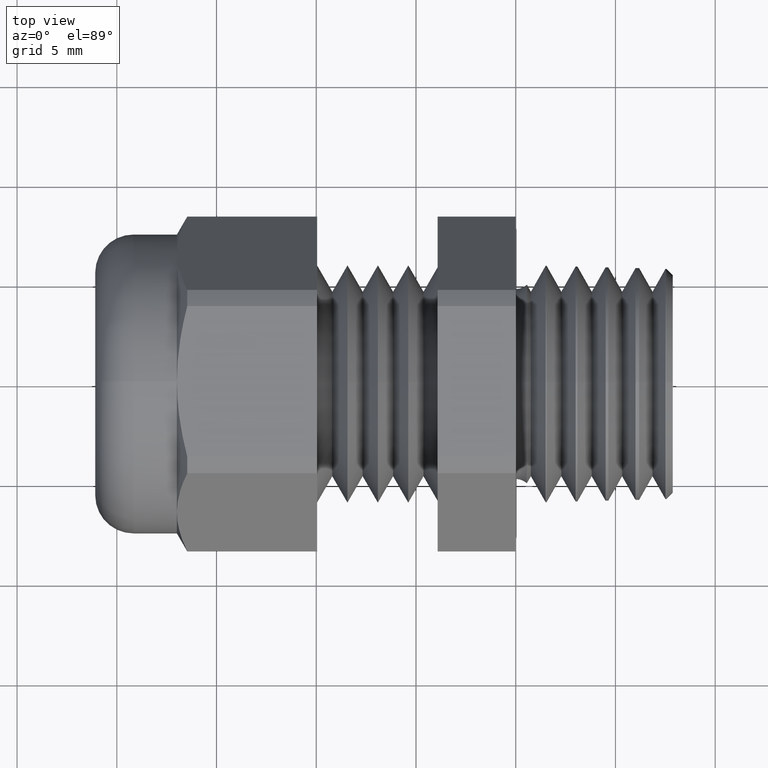
[diagram: clean part render]
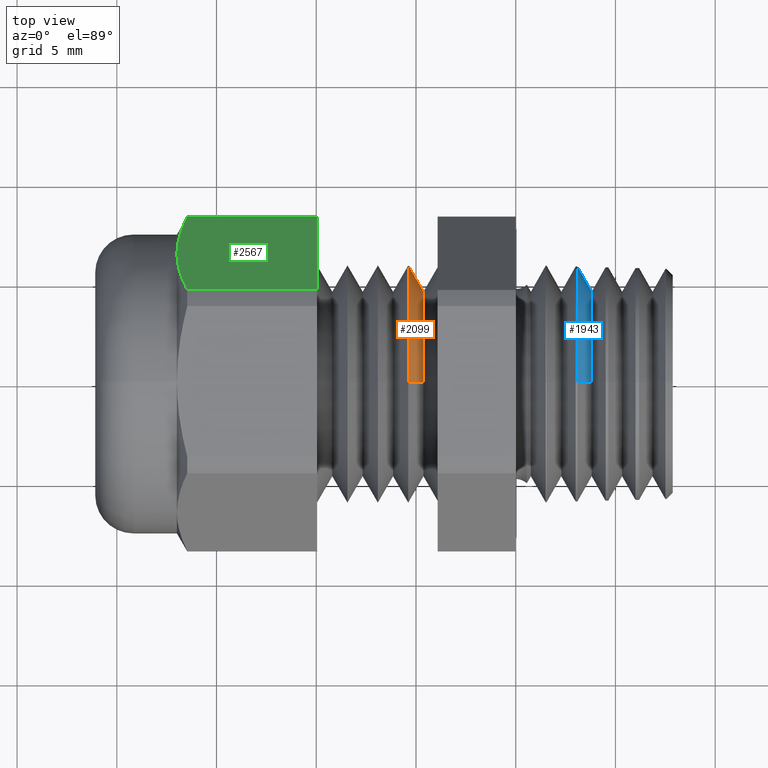
[diagram: same view with three faces highlighted in distinct colors, each labeled with its STEP entity id]
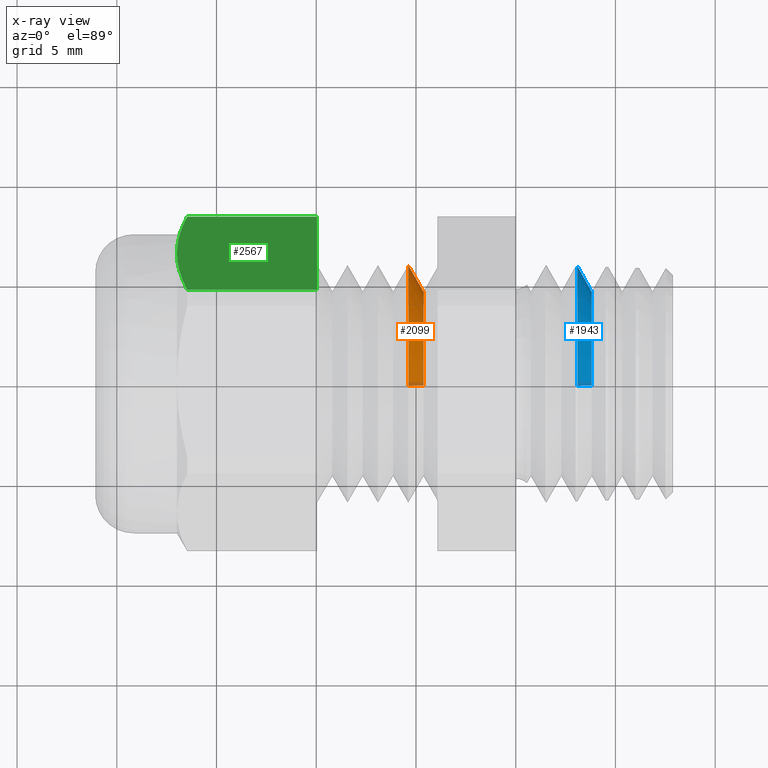
[diagram: x-ray of the same camera — body ghosted, the three highlighted faces saturated]
A machine part, top view with three faces highlighted in distinct colors.
The next image is the same camera in x-ray (body ghosted, the three faces saturated) — at least one of them is partly hidden behind the body in this view.
Their STEP definitions:

[orange] entity #2099 — the highlighted conical surface has half-angle 60 deg.
#34 = DIRECTION ( 'NONE',  ( 0.0000000000000000000, 0.0000000000000000000, -1.000000000000000000 ) ) ;
#35 = DIRECTION ( 'NONE',  ( 1.000000000000000000, 0.0000000000000000000, 0.0000000000000000000 ) ) ;
#36 = CARTESIAN_POINT ( 'NONE',  ( -0.2120833333333335400, 0.0000000000000000000, 0.0000000000000000000 ) ) ;
#37 = AXIS2_PLACEMENT_3D ( 'NONE', #36, #35, #34 ) ;
#38 = CIRCLE ( 'NONE', #37, 0.2349999999999998200 ) ;
#43 = CARTESIAN_POINT ( 'NONE',  ( -0.2120833333333335400, 2.877919977996278600E-017, 0.2349999999999998200 ) ) ;
#44 = DIRECTION ( 'NONE',  ( -0.4999999999999935100, 0.0000000000000000000, 0.8660254037844422600 ) ) ;
#45 = VECTOR ( 'NONE', #44, 39.37007874015748900 ) ;
#46 = CARTESIAN_POINT ( 'NONE',  ( -0.2120833333333335400, 0.0000000000000000000, 0.2349999999999998200 ) ) ;
#51 = LINE ( 'NONE', #46, #45 ) ;
#71 = DIRECTION ( 'NONE',  ( 0.0000000000000000000, 0.0000000000000000000, -1.000000000000000000 ) ) ;
#72 = DIRECTION ( 'NONE',  ( 1.000000000000000000, 0.0000000000000000000, 0.0000000000000000000 ) ) ;
#73 = CARTESIAN_POINT ( 'NONE',  ( -0.1820833473208373400, 0.0000000000000000000, 0.0000000000000000000 ) ) ;
#74 = AXIS2_PLACEMENT_3D ( 'NONE', #73, #72, #71 ) ;
#75 = CIRCLE ( 'NONE', #74, 0.1830384999999998300 ) ;
#76 = DIRECTION ( 'NONE',  ( -0.4999999999999935100, 1.060575238724911400E-016, -0.8660254037844422600 ) ) ;
#77 = VECTOR ( 'NONE', #76, 39.37007874015748900 ) ;
#78 = CARTESIAN_POINT ( 'NONE',  ( -0.2120833333333335400, 2.877919977996278000E-017, -0.2349999999999998200 ) ) ;
#79 = LINE ( 'NONE', #78, #77 ) ;
#80 = CARTESIAN_POINT ( 'NONE',  ( -0.1820833473208373400, 0.0000000000000000000, -0.1830384999999998300 ) ) ;
#85 = CARTESIAN_POINT ( 'NONE',  ( -0.1820833473208373400, 2.559747554726802000E-017, 0.1830384999999998300 ) ) ;
#96 = CARTESIAN_POINT ( 'NONE',  ( -0.2120833333333335400, 0.0000000000000000000, -0.2349999999999998200 ) ) ;
#1729 = EDGE_CURVE ( 'NONE', #1743, #1732, #51, .T. ) ;
#1731 = ORIENTED_EDGE ( 'NONE', *, *, #1729, .F. ) ;
#1732 = VERTEX_POINT ( 'NONE', #43 ) ;
#1735 = EDGE_CURVE ( 'NONE', #1737, #1732, #38, .T. ) ;
#1736 = ORIENTED_EDGE ( 'NONE', *, *, #1735, .T. ) ;
#1737 = VERTEX_POINT ( 'NONE', #96 ) ;
#1741 = ORIENTED_EDGE ( 'NONE', *, *, #1748, .T. ) ;
#1743 = VERTEX_POINT ( 'NONE', #85 ) ;
#1745 = VERTEX_POINT ( 'NONE', #80 ) ;
#1748 = EDGE_CURVE ( 'NONE', #1745, #1737, #79, .T. ) ;
#1750 = EDGE_CURVE ( 'NONE', #1745, #1743, #75, .T. ) ;
#2094 = EDGE_LOOP ( 'NONE', ( #2100, #1741, #1736, #1731 ) ) ;
#2099 = ADVANCED_FACE ( 'NONE', ( #2500 ), #2499, .T. ) ;
#2100 = ORIENTED_EDGE ( 'NONE', *, *, #1750, .F. ) ;
#2493 = DIRECTION ( 'NONE',  ( 0.0000000000000000000, 0.0000000000000000000, 1.000000000000000000 ) ) ;
#2495 = DIRECTION ( 'NONE',  ( -1.000000000000000000, 0.0000000000000000000, 0.0000000000000000000 ) ) ;
#2496 = CARTESIAN_POINT ( 'NONE',  ( -0.2120833333333335400, 0.0000000000000000000, 0.0000000000000000000 ) ) ;
#2497 = AXIS2_PLACEMENT_3D ( 'NONE', #2496, #2495, #2493 ) ;
#2499 = CONICAL_SURFACE ( 'NONE', #2497, 0.2349999999999998200, 1.047197551196605200 ) ;
#2500 = FACE_OUTER_BOUND ( 'NONE', #2094, .T. ) ;

[blue] entity #1943 — the highlighted conical surface has half-angle 60 deg.
#410 = CARTESIAN_POINT ( 'NONE',  ( 0.1499999860124967600, 2.540211090674531700E-017, -0.1830384999999999700 ) ) ;
#411 = CARTESIAN_POINT ( 'NONE',  ( 0.1499999860124967600, 0.0000000000000000000, 0.1830384999999999700 ) ) ;
#443 = CIRCLE ( 'NONE', #505, 0.1830384999999999700 ) ;
#448 = CARTESIAN_POINT ( 'NONE',  ( 0.1499999860124967600, 0.0000000000000000000, 0.0000000000000000000 ) ) ;
#456 = CARTESIAN_POINT ( 'NONE',  ( 0.1218420629992987600, 0.0000000000000000000, 0.2318094532944724700 ) ) ;
#457 = DIRECTION ( 'NONE',  ( 0.0000000000000000000, 0.0000000000000000000, 1.000000000000000000 ) ) ;
#458 = DIRECTION ( 'NONE',  ( 1.000000000000000000, 0.0000000000000000000, 0.0000000000000000000 ) ) ;
#459 = CARTESIAN_POINT ( 'NONE',  ( 0.1218420629992987600, 0.0000000000000000000, 0.0000000000000000000 ) ) ;
#460 = AXIS2_PLACEMENT_3D ( 'NONE', #459, #458, #457 ) ;
#461 = CIRCLE ( 'NONE', #460, 0.2318094532944724700 ) ;
#462 = CARTESIAN_POINT ( 'NONE',  ( 0.1218420629992987600, 2.839428978583775700E-017, -0.2318094532944725000 ) ) ;
#463 = DIRECTION ( 'NONE',  ( -0.4999999999999952800, 1.060575238724910200E-016, -0.8660254037844412600 ) ) ;
#464 = VECTOR ( 'NONE', #463, 39.37007874015748100 ) ;
#465 = CARTESIAN_POINT ( 'NONE',  ( 0.1200000000000004100, 2.877919977996279200E-017, -0.2349999999999999600 ) ) ;
#466 = DIRECTION ( 'NONE',  ( 0.0000000000000000000, 0.0000000000000000000, 1.000000000000000000 ) ) ;
#467 = DIRECTION ( 'NONE',  ( -1.000000000000000000, 0.0000000000000000000, 0.0000000000000000000 ) ) ;
#468 = CARTESIAN_POINT ( 'NONE',  ( 0.1200000000000004100, 0.0000000000000000000, 0.0000000000000000000 ) ) ;
#469 = AXIS2_PLACEMENT_3D ( 'NONE', #468, #467, #466 ) ;
#470 = LINE ( 'NONE', #465, #464 ) ;
#471 = CONICAL_SURFACE ( 'NONE', #469, 0.2349999999999999600, 1.047197551196603200 ) ;
#472 = FACE_OUTER_BOUND ( 'NONE', #1921, .T. ) ;
#499 = DIRECTION ( 'NONE',  ( -0.4999999999999952800, 0.0000000000000000000, 0.8660254037844412600 ) ) ;
#500 = VECTOR ( 'NONE', #499, 39.37007874015748100 ) ;
#501 = CARTESIAN_POINT ( 'NONE',  ( 0.1200000000000004100, 0.0000000000000000000, 0.2349999999999999600 ) ) ;
#502 = LINE ( 'NONE', #501, #500 ) ;
#503 = DIRECTION ( 'NONE',  ( 0.0000000000000000000, 0.0000000000000000000, 1.000000000000000000 ) ) ;
#504 = DIRECTION ( 'NONE',  ( -1.000000000000000000, 0.0000000000000000000, 0.0000000000000000000 ) ) ;
#505 = AXIS2_PLACEMENT_3D ( 'NONE', #448, #504, #503 ) ;
#1911 = VERTEX_POINT ( 'NONE', #411 ) ;
#1912 = VERTEX_POINT ( 'NONE', #410 ) ;
#1921 = EDGE_LOOP ( 'NONE', ( #1944, #1945, #1948, #1951 ) ) ;
#1943 = ADVANCED_FACE ( 'NONE', ( #472 ), #471, .T. ) ;
#1944 = ORIENTED_EDGE ( 'NONE', *, *, #1958, .T. ) ;
#1945 = ORIENTED_EDGE ( 'NONE', *, *, #1946, .T. ) ;
#1946 = EDGE_CURVE ( 'NONE', #1912, #1947, #470, .T. ) ;
#1947 = VERTEX_POINT ( 'NONE', #462 ) ;
#1948 = ORIENTED_EDGE ( 'NONE', *, *, #1949, .T. ) ;
#1949 = EDGE_CURVE ( 'NONE', #1947, #1950, #461, .T. ) ;
#1950 = VERTEX_POINT ( 'NONE', #456 ) ;
#1951 = ORIENTED_EDGE ( 'NONE', *, *, #1959, .F. ) ;
#1958 = EDGE_CURVE ( 'NONE', #1911, #1912, #443, .T. ) ;
#1959 = EDGE_CURVE ( 'NONE', #1911, #1950, #502, .T. ) ;

[green] entity #2567 — the highlighted planar face has unit normal (0, 0.866, 0.5).
#599 = DIRECTION ( 'NONE',  ( 1.000000000000000000, 0.0000000000000000000, 0.0000000000000000000 ) ) ;
#600 = VECTOR ( 'NONE', #599, 39.37007874015748100 ) ;
#601 = CARTESIAN_POINT ( 'NONE',  ( -1.612607445236302800, 0.3298736633726286900, 0.01864205495973406500 ) ) ;
#602 = LINE ( 'NONE', #601, #600 ) ;
#728 = CARTESIAN_POINT ( 'NONE',  ( -0.6687500000000000700, 0.2554774941164093000, 0.1474999999999999600 ) ) ;
#880 = CARTESIAN_POINT ( 'NONE',  ( -0.3920833333333335100, 0.3298736633726286900, 0.01864205495973406500 ) ) ;
#882 = CARTESIAN_POINT ( 'NONE',  ( -0.6483118004706871500, 0.3298736633726286900, 0.01864205495973406800 ) ) ;
#887 = FACE_OUTER_BOUND ( 'NONE', #2568, .T. ) ;
#908 = DIRECTION ( 'NONE',  ( 1.000000000000000000, 0.0000000000000000000, 0.0000000000000000000 ) ) ;
#909 = VECTOR ( 'NONE', #908, 39.37007874015748100 ) ;
#910 = CARTESIAN_POINT ( 'NONE',  ( -1.612607445236302800, 0.1810813248601898000, 0.2763579450402656200 ) ) ;
#911 = LINE ( 'NONE', #910, #909 ) ;
#912 = CARTESIAN_POINT ( 'NONE',  ( -0.3920833333333335100, 0.1810813248601898000, 0.2763579450402656200 ) ) ;
#919 = DIRECTION ( 'NONE',  ( 0.0000000000000000000, 0.5000000000000000000, -0.8660254037844386000 ) ) ;
#920 = VECTOR ( 'NONE', #919, 39.37007874015748100 ) ;
#921 = CARTESIAN_POINT ( 'NONE',  ( -0.3920833333333335100, 0.3142274941164091600, 0.04574201505532837800 ) ) ;
#922 = LINE ( 'NONE', #921, #920 ) ;
#923 = CARTESIAN_POINT ( 'NONE',  ( -0.6483118004706871500, 0.1810813248601898000, 0.2763579450402656200 ) ) ;
#924 = CARTESIAN_POINT ( 'NONE',  ( -0.6546447182807062500, 0.1932598291257306400, 0.2552641568921545900 ) ) ;
#925 = CARTESIAN_POINT ( 'NONE',  ( -0.6597888758521444100, 0.2055356993138362200, 0.2340017260192355200 ) ) ;
#926 = CARTESIAN_POINT ( 'NONE',  ( -0.6668553477117322700, 0.2303513261605532600, 0.1910197994990514000 ) ) ;
#927 = CARTESIAN_POINT ( 'NONE',  ( -0.6687499999999999600, 0.2429753967002836700, 0.1691542679259047900 ) ) ;
#928 = CARTESIAN_POINT ( 'NONE',  ( -0.6687500000000000700, 0.2554774941164093000, 0.1474999999999999600 ) ) ;
#929 = B_SPLINE_CURVE_WITH_KNOTS ( 'NONE', 3,
 ( #928, #927, #926, #925, #924, #923 ),
 .UNSPECIFIED., .F., .F.,
 ( 4, 2, 4 ),
 ( 0.003813694281531668900, 0.005707528494126063800, 0.007601362706720458600 ),
 .UNSPECIFIED. ) ;
#930 = CARTESIAN_POINT ( 'NONE',  ( -0.6687500000000000700, 0.2554774941164093000, 0.1474999999999999600 ) ) ;
#931 = CARTESIAN_POINT ( 'NONE',  ( -0.6687500000000000700, 0.2806519391499582800, 0.1038965821495429900 ) ) ;
#932 = CARTESIAN_POINT ( 'NONE',  ( -0.6610377494917055700, 0.3054010538923457900, 0.06102985797337579600 ) ) ;
#933 = CARTESIAN_POINT ( 'NONE',  ( -0.6483118004706871500, 0.3298736633726286900, 0.01864205495973406800 ) ) ;
#934 = B_SPLINE_CURVE_WITH_KNOTS ( 'NONE', 3,
 ( #933, #932, #931, #930 ),
 .UNSPECIFIED., .F., .F.,
 ( 4, 4 ),
 ( 2.361312121621415200E-007, 0.003813694281531668900 ),
 .UNSPECIFIED. ) ;
#935 = DIRECTION ( 'NONE',  ( 0.0000000000000000000, -0.5000000000000000000, 0.8660254037844386000 ) ) ;
#936 = DIRECTION ( 'NONE',  ( 0.0000000000000000000, 0.8660254037844387100, 0.5000000000000001100 ) ) ;
#937 = CARTESIAN_POINT ( 'NONE',  ( -1.612607445236302800, 0.3298736633726286900, 0.01864205495973408900 ) ) ;
#938 = AXIS2_PLACEMENT_3D ( 'NONE', #937, #936, #935 ) ;
#939 = PLANE ( 'NONE',  #938 ) ;
#1143 = CARTESIAN_POINT ( 'NONE',  ( -0.6483118004706871500, 0.1810813248601898000, 0.2763579450402656200 ) ) ;
#2148 = EDGE_CURVE ( 'NONE', #2536, #2539, #602, .T. ) ;
#2210 = VERTEX_POINT ( 'NONE', #728 ) ;
#2536 = VERTEX_POINT ( 'NONE', #882 ) ;
#2539 = VERTEX_POINT ( 'NONE', #880 ) ;
#2555 = VERTEX_POINT ( 'NONE', #912 ) ;
#2557 = EDGE_CURVE ( 'NONE', #2675, #2555, #911, .T. ) ;
#2567 = ADVANCED_FACE ( 'NONE', ( #887 ), #939, .T. ) ;
#2568 = EDGE_LOOP ( 'NONE', ( #2569, #2570, #2572, #2574, #2575 ) ) ;
#2569 = ORIENTED_EDGE ( 'NONE', *, *, #2148, .F. ) ;
#2570 = ORIENTED_EDGE ( 'NONE', *, *, #2571, .T. ) ;
#2571 = EDGE_CURVE ( 'NONE', #2536, #2210, #934, .T. ) ;
#2572 = ORIENTED_EDGE ( 'NONE', *, *, #2573, .T. ) ;
#2573 = EDGE_CURVE ( 'NONE', #2210, #2675, #929, .T. ) ;
#2574 = ORIENTED_EDGE ( 'NONE', *, *, #2557, .T. ) ;
#2575 = ORIENTED_EDGE ( 'NONE', *, *, #2576, .T. ) ;
#2576 = EDGE_CURVE ( 'NONE', #2555, #2539, #922, .T. ) ;
#2675 = VERTEX_POINT ( 'NONE', #1143 ) ;